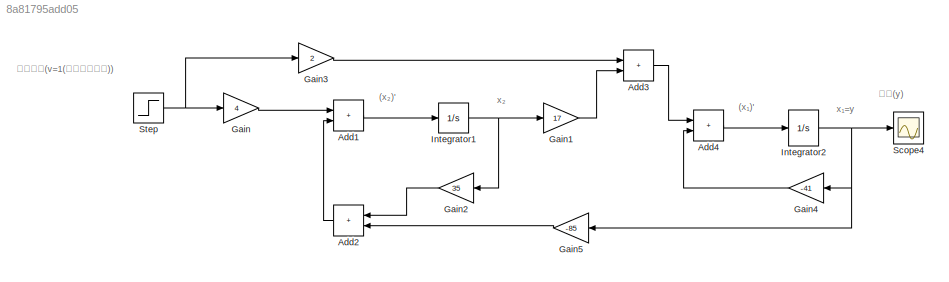
MODEL slx_8a81795add05
KIND model
CONFIG AbsTol = auto
CONFIG EnableMultiTasking = off
CONFIG FixedStep = 1e-3
CONFIG MaxStep = auto
CONFIG MinStep = auto
CONFIG RelTol = 1e-3
CONFIG SampleTimeConstraint = Unconstrained
CONFIG SolverName = FixedStepAuto
CONFIG StartTime = 0.0
CONFIG StopTime = 10
BLOCK [Sum] Add1
  IconShape = rectangular
  Ports = [2, 1]
BLOCK [Sum] Add2
  IconShape = rectangular
  Ports = [2, 1]
BLOCK [Sum] Add3
  IconShape = rectangular
  Ports = [2, 1]
BLOCK [Sum] Add4
  IconShape = rectangular
  Ports = [2, 1]
BLOCK [Gain] Gain
  Gain = 4
BLOCK [Gain] Gain1
  Gain = 17
BLOCK [Gain] Gain2
  Gain = 35
BLOCK [Gain] Gain3
  Gain = 2
BLOCK [Gain] Gain4
  Gain = -41
BLOCK [Gain] Gain5
  Gain = -85
BLOCK [Integrator] Integrator1
  Ports = [1, 1]
BLOCK [Integrator] Integrator2
  Ports = [1, 1]
BLOCK [Scope] Scope4
  Floating = off
  NumInputPorts = 1
  Ports = [1]
  ScopeSpecificationString = Simulink.scopes.TimeScopeBlockCfg('CurrentConfiguration', extmgr.ConfigurationSet(extmgr.Configuration('Core','General UI',true),extmgr.Configuration('Core','Source UI',true),extmgr.Configuration('Sources','WiredSimulink',true),extmgr.Configuration('Visuals','Time Domain',true,'SerializedDisplays',{struct('MinYLimReal','-0.5','MaxYLimReal','0.5','YLabelReal','y=x₁(オブザーバなし)','MinYLimMag','0.00000',...<+1499ch>
BLOCK [Step] Step
  Before = 1
  SampleTime = 0
  Time = 10
ANNOTATION (root): (x₁)'
ANNOTATION (root): (x₂)'
ANNOTATION (root): x₁=y
ANNOTATION (root): x₂
ANNOTATION (root): 出力(y)
ANNOTATION (root): 制御入力(v=1(単位ステップ))
LINE Add1:1 -> Integrator1:1
LINE Add2:1 -> Add1:2
LINE Add3:1 -> Add4:1
LINE Add4:1 -> Integrator2:1
LINE Gain1:1 -> Add3:2
LINE Gain2:1 -> Add2:1
LINE Gain3:1 -> Add3:1
LINE Gain4:1 -> Add4:2
LINE Gain5:1 -> Add2:2
LINE Gain:1 -> Add1:1
NET Integrator1:1 -> Gain1:1, Gain2:1
NET Integrator2:1 -> Gain4:1, Gain5:1, Scope4:1
NET Step:1 -> Gain3:1, Gain:1
note: NET lines group one-source signal fan-out (src -> all destinations, sorted); 1:1 wires keep LINE
